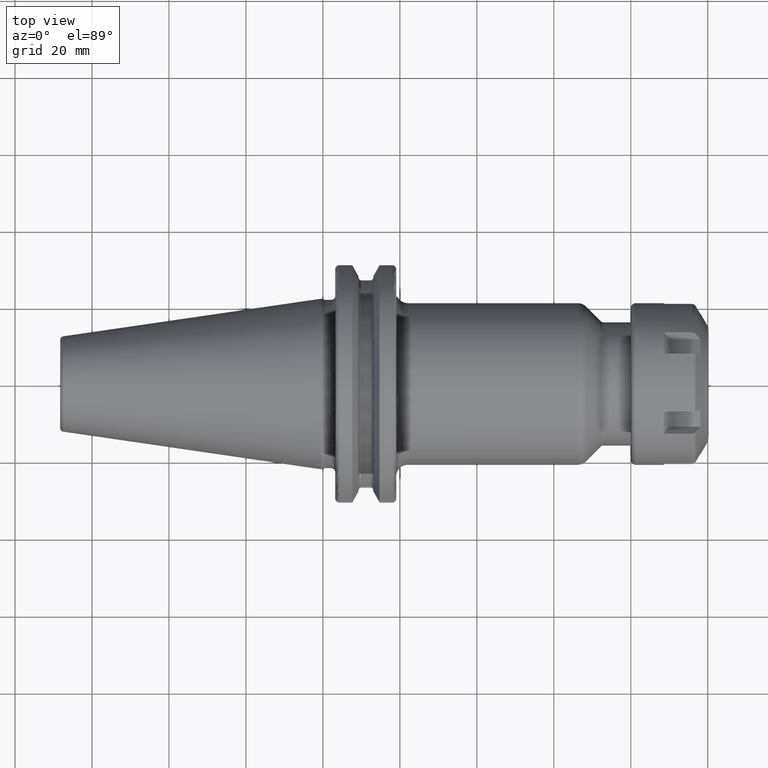
[diagram: clean part render]
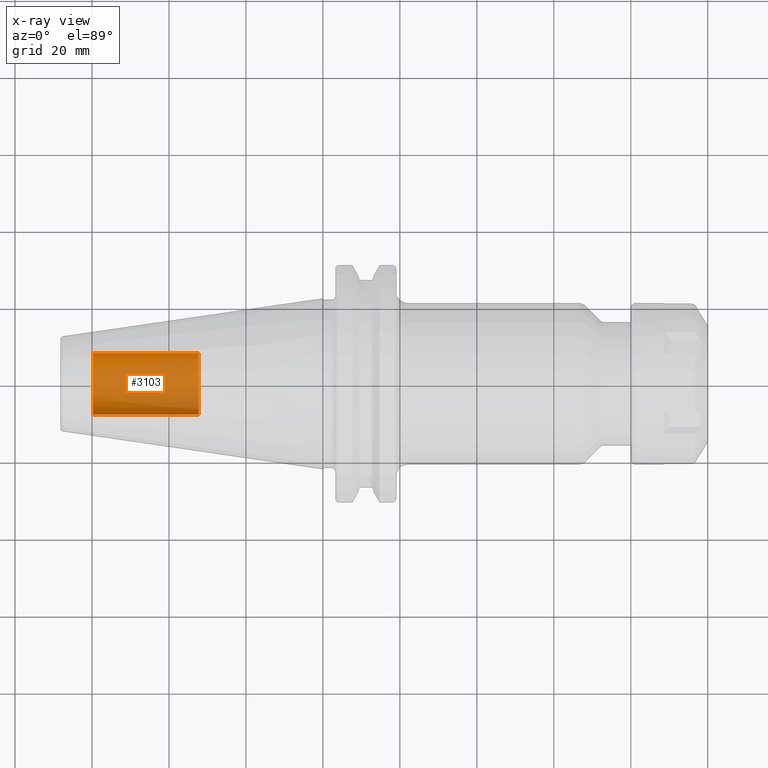
[diagram: x-ray — body ghosted, one internal face saturated and labeled with its STEP entity id]
A machine part, top view, then the same camera in x-ray: the body is ghosted and one INTERNAL B-rep face — a face not visible from any outside direction — is saturated and labeled: STEP entity #3103.
In plain terms, the highlighted cylindrical surface (edge-blend (fillet) strip) has radius 8.0028 mm, axis along (1, 0, 0).
Its self-contained STEP definition (entity closure, byte-faithful):
#3038=CARTESIAN_POINT('',(-5.98E1,0.E0,0.E0));
#3039=DIRECTION('',(-1.E0,0.E0,0.E0));
#3040=DIRECTION('',(0.E0,1.E0,0.E0));
#3041=AXIS2_PLACEMENT_3D('',#3038,#3039,#3040);
#3043=DIRECTION('',(1.E0,0.E0,0.E0));
#3044=VECTOR('',#3043,2.755E1);
#3045=CARTESIAN_POINT('',(-5.98E1,-8.00275E0,0.E0));
#3046=LINE('',#3045,#3044);
#3052=DIRECTION('',(1.E0,0.E0,0.E0));
#3053=VECTOR('',#3052,2.755E1);
#3054=CARTESIAN_POINT('',(-5.98E1,8.00275E0,0.E0));
#3055=LINE('',#3054,#3053);
#3061=CARTESIAN_POINT('',(-3.225E1,0.E0,0.E0));
#3062=DIRECTION('',(1.E0,0.E0,0.E0));
#3063=DIRECTION('',(0.E0,-1.E0,0.E0));
#3064=AXIS2_PLACEMENT_3D('',#3061,#3062,#3063);
#3076=CARTESIAN_POINT('',(-5.98E1,8.00275E0,0.E0));
#3077=CARTESIAN_POINT('',(-5.98E1,-8.00275E0,0.E0));
#3078=VERTEX_POINT('',#3076);
#3079=VERTEX_POINT('',#3077);
#3080=CARTESIAN_POINT('',(-3.225E1,8.00275E0,0.E0));
#3081=CARTESIAN_POINT('',(-3.225E1,-8.00275E0,0.E0));
#3082=VERTEX_POINT('',#3080);
#3083=VERTEX_POINT('',#3081);
#3088=CARTESIAN_POINT('',(-5.98E1,0.E0,0.E0));
#3089=DIRECTION('',(1.E0,0.E0,0.E0));
#3090=DIRECTION('',(0.E0,1.E0,0.E0));
#3091=AXIS2_PLACEMENT_3D('',#3088,#3089,#3090);
#3092=CYLINDRICAL_SURFACE('',#3091,8.00275E0);
#3094=ORIENTED_EDGE('',*,*,#3093,.T.);
#3096=ORIENTED_EDGE('',*,*,#3095,.T.);
#3098=ORIENTED_EDGE('',*,*,#3097,.T.);
#3100=ORIENTED_EDGE('',*,*,#3099,.F.);
#3101=EDGE_LOOP('',(#3094,#3096,#3098,#3100));
#3102=FACE_OUTER_BOUND('',#3101,.F.);
#3103=ADVANCED_FACE('',(#3102),#3092,.T.);
#3042=CIRCLE('',#3041,8.00275E0);
#3065=CIRCLE('',#3064,8.00275E0);
#3093=EDGE_CURVE('',#3078,#3079,#3042,.T.);
#3095=EDGE_CURVE('',#3079,#3083,#3046,.T.);
#3097=EDGE_CURVE('',#3083,#3082,#3065,.T.);
#3099=EDGE_CURVE('',#3078,#3082,#3055,.T.);